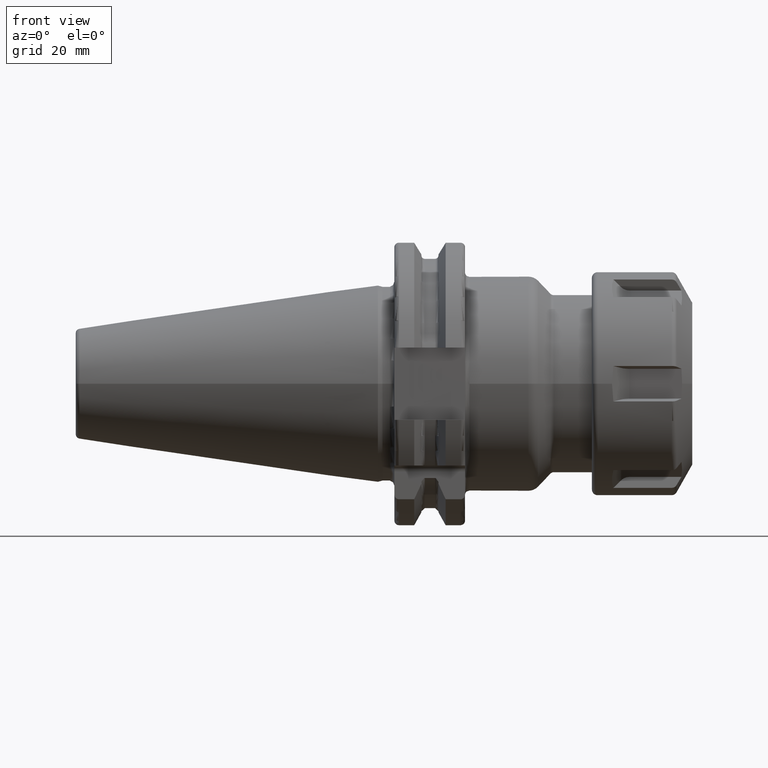
[diagram: clean part render]
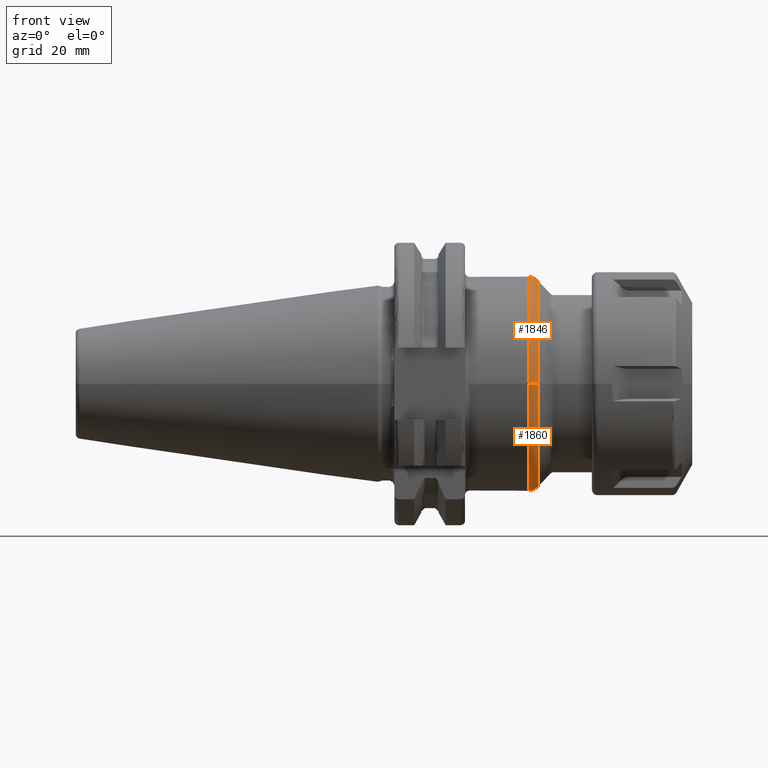
[diagram: same view with one multi-face feature highlighted, each face labeled with its STEP entity id]
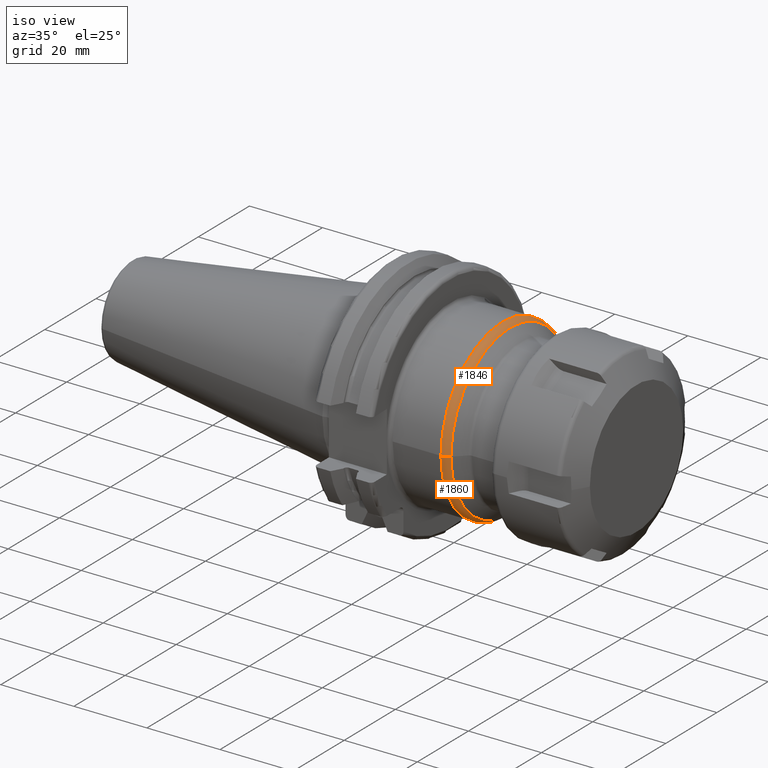
[diagram: same view with one multi-face feature highlighted, each face labeled with its STEP entity id]
A machine part, front view. The highlighted faces form ONE feature: a constant-radius fillet chain: 2 tangent blend faces with common blend radius 3 mm. The faces share edges in the B-rep.
A second angle (iso view) of the same feature is appended — it is thin or edge-on in the first view.
Their STEP definitions:
[1] entity #1846 (Torus):
#144=CARTESIAN_POINT('',(3.325735931288E1,0.E0,0.E0));
#145=DIRECTION('',(-1.E0,0.E0,0.E0));
#146=DIRECTION('',(0.E0,-1.E0,0.E0));
#147=AXIS2_PLACEMENT_3D('',#144,#145,#146);
#158=CARTESIAN_POINT('',(3.325735931288E1,-2.1E1,-5.511560652316E-11));
#159=DIRECTION('',(0.E0,-2.624553352426E-12,1.E0));
#160=DIRECTION('',(0.E0,-1.E0,-2.624553352426E-12));
#161=AXIS2_PLACEMENT_3D('',#158,#159,#160);
#163=CARTESIAN_POINT('',(3.325735931288E1,2.1E1,5.511846534745E-11));
#164=DIRECTION('',(0.E0,2.624689528219E-12,-1.E0));
#165=DIRECTION('',(1.184237892934E-14,1.E0,2.624689528219E-12));
#166=AXIS2_PLACEMENT_3D('',#163,#164,#165);
#1011=CARTESIAN_POINT('',(3.537867965644E1,0.E0,0.E0));
#1012=DIRECTION('',(-1.E0,0.E0,0.E0));
#1013=DIRECTION('',(0.E0,-1.E0,0.E0));
#1014=AXIS2_PLACEMENT_3D('',#1011,#1012,#1013);
#1538=CARTESIAN_POINT('',(3.325735931288E1,2.4E1,0.E0));
#1539=CARTESIAN_POINT('',(3.325735931288E1,-2.4E1,0.E0));
#1540=VERTEX_POINT('',#1538);
#1541=VERTEX_POINT('',#1539);
#1542=CARTESIAN_POINT('',(3.537867965644E1,2.312132034356E1,0.E0));
#1543=CARTESIAN_POINT('',(3.537867965644E1,-2.312132034356E1,0.E0));
#1544=VERTEX_POINT('',#1542);
#1545=VERTEX_POINT('',#1543);
#1832=CARTESIAN_POINT('',(3.325735931288E1,0.E0,0.E0));
#1833=DIRECTION('',(1.E0,0.E0,0.E0));
#1834=DIRECTION('',(0.E0,-9.999810241799E-1,-6.160461033104E-3));
#1835=AXIS2_PLACEMENT_3D('',#1832,#1833,#1834);
#1836=TOROIDAL_SURFACE('',#1835,2.1E1,3.E0);
#1837=ORIENTED_EDGE('',*,*,#1819,.T.);
#1839=ORIENTED_EDGE('',*,*,#1838,.T.);
#1841=ORIENTED_EDGE('',*,*,#1840,.F.);
#1843=ORIENTED_EDGE('',*,*,#1842,.F.);
#1844=EDGE_LOOP('',(#1837,#1839,#1841,#1843));
#1845=FACE_OUTER_BOUND('',#1844,.F.);
#1846=ADVANCED_FACE('',(#1845),#1836,.T.);
#148=CIRCLE('',#147,2.4E1);
#162=CIRCLE('',#161,3.E0);
#167=CIRCLE('',#166,3.E0);
#1015=CIRCLE('',#1014,2.312132034356E1);
#1819=EDGE_CURVE('',#1541,#1540,#148,.T.);
#1838=EDGE_CURVE('',#1540,#1544,#167,.T.);
#1840=EDGE_CURVE('',#1545,#1544,#1015,.T.);
#1842=EDGE_CURVE('',#1541,#1545,#162,.T.);
[2] entity #1860 (Torus):
#158=CARTESIAN_POINT('',(3.325735931288E1,-2.1E1,-5.511560652316E-11));
#159=DIRECTION('',(0.E0,-2.624553352426E-12,1.E0));
#160=DIRECTION('',(0.E0,-1.E0,-2.624553352426E-12));
#161=AXIS2_PLACEMENT_3D('',#158,#159,#160);
#163=CARTESIAN_POINT('',(3.325735931288E1,2.1E1,5.511846534745E-11));
#164=DIRECTION('',(0.E0,2.624689528219E-12,-1.E0));
#165=DIRECTION('',(1.184237892934E-14,1.E0,2.624689528219E-12));
#166=AXIS2_PLACEMENT_3D('',#163,#164,#165);
#168=CARTESIAN_POINT('',(3.325735931288E1,0.E0,0.E0));
#169=DIRECTION('',(-1.E0,0.E0,0.E0));
#170=DIRECTION('',(0.E0,1.E0,0.E0));
#171=AXIS2_PLACEMENT_3D('',#168,#169,#170);
#993=CARTESIAN_POINT('',(3.537867965644E1,0.E0,0.E0));
#994=DIRECTION('',(-1.E0,0.E0,0.E0));
#995=DIRECTION('',(0.E0,1.E0,0.E0));
#996=AXIS2_PLACEMENT_3D('',#993,#994,#995);
#1538=CARTESIAN_POINT('',(3.325735931288E1,2.4E1,0.E0));
#1539=CARTESIAN_POINT('',(3.325735931288E1,-2.4E1,0.E0));
#1540=VERTEX_POINT('',#1538);
#1541=VERTEX_POINT('',#1539);
#1542=CARTESIAN_POINT('',(3.537867965644E1,2.312132034356E1,0.E0));
#1543=CARTESIAN_POINT('',(3.537867965644E1,-2.312132034356E1,0.E0));
#1544=VERTEX_POINT('',#1542);
#1545=VERTEX_POINT('',#1543);
#1847=CARTESIAN_POINT('',(3.325735931288E1,0.E0,0.E0));
#1848=DIRECTION('',(1.E0,0.E0,0.E0));
#1849=DIRECTION('',(0.E0,9.999810241799E-1,6.160461033104E-3));
#1850=AXIS2_PLACEMENT_3D('',#1847,#1848,#1849);
#1851=TOROIDAL_SURFACE('',#1850,2.1E1,3.E0);
#1853=ORIENTED_EDGE('',*,*,#1852,.T.);
#1854=ORIENTED_EDGE('',*,*,#1842,.T.);
#1856=ORIENTED_EDGE('',*,*,#1855,.F.);
#1857=ORIENTED_EDGE('',*,*,#1838,.F.);
#1858=EDGE_LOOP('',(#1853,#1854,#1856,#1857));
#1859=FACE_OUTER_BOUND('',#1858,.F.);
#1860=ADVANCED_FACE('',(#1859),#1851,.T.);
#162=CIRCLE('',#161,3.E0);
#167=CIRCLE('',#166,3.E0);
#172=CIRCLE('',#171,2.4E1);
#997=CIRCLE('',#996,2.312132034356E1);
#1838=EDGE_CURVE('',#1540,#1544,#167,.T.);
#1842=EDGE_CURVE('',#1541,#1545,#162,.T.);
#1852=EDGE_CURVE('',#1540,#1541,#172,.T.);
#1855=EDGE_CURVE('',#1544,#1545,#997,.T.);